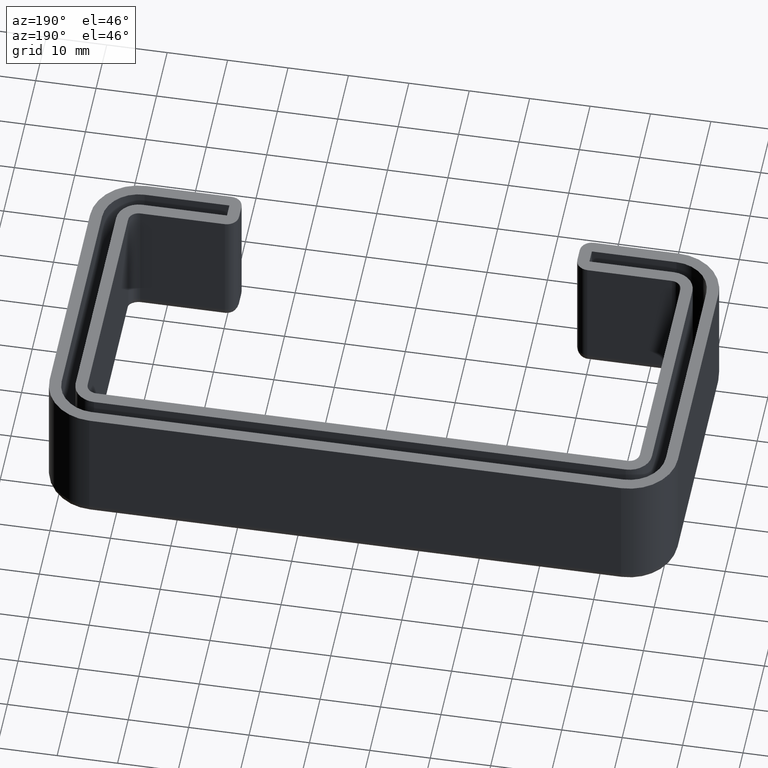
[diagram: clean part render]
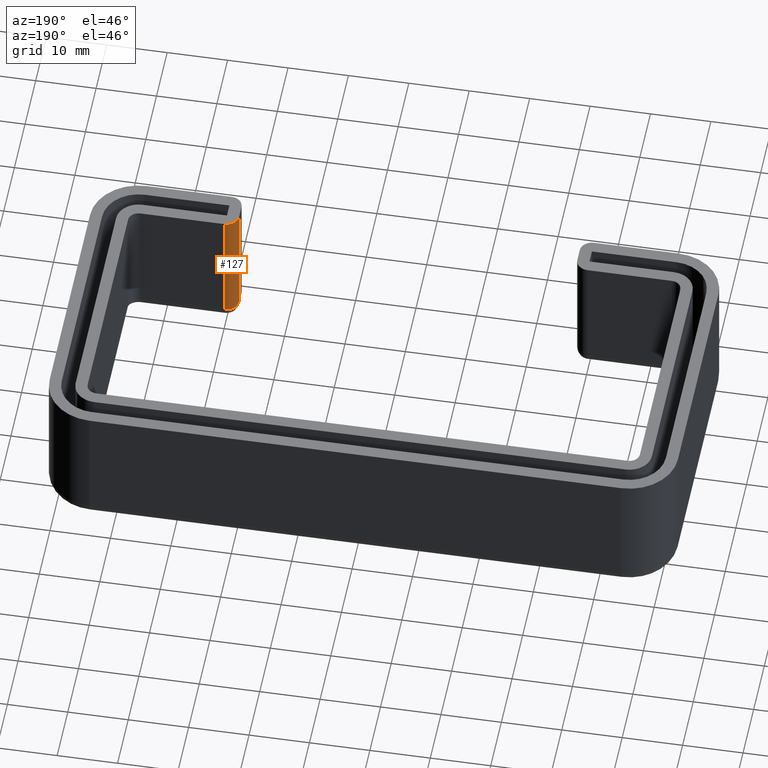
[diagram: same view with one face highlighted and labeled with its STEP entity id]
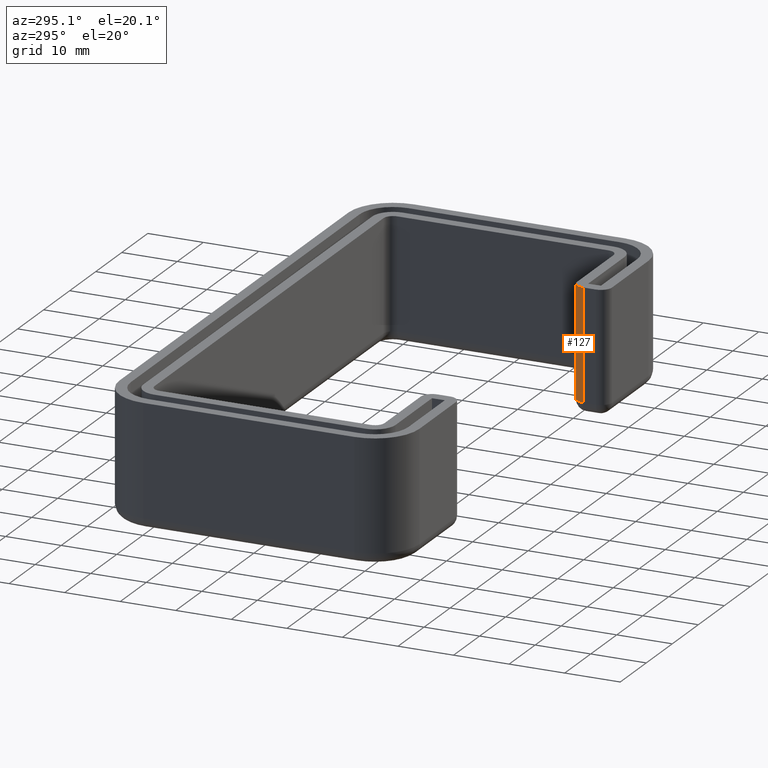
[diagram: same view with one face highlighted and labeled with its STEP entity id]
A machine part, auxiliary view. The second image highlights one B-rep face of the part: STEP entity #127.
A second angle (auxiliary view) of the same face is appended — the face is thin or edge-on in the first view.
In plain terms, the highlighted cylindrical surface (edge-blend (fillet) strip) has radius 2 mm, axis along (0, 0, 1).
Its self-contained STEP definition (entity closure, byte-faithful):
#127 = ADVANCED_FACE( '', ( #252 ), #253, .T. );
#252 = FACE_OUTER_BOUND( '', #395, .T. );
#253 = CYLINDRICAL_SURFACE( '', #396, 2.00000000000000 );
#395 = EDGE_LOOP( '', ( #867, #868, #869, #870 ) );
#396 = AXIS2_PLACEMENT_3D( '', #871, #872, #873 );
#867 = ORIENTED_EDGE( '', *, *, #1118, .F. );
#868 = ORIENTED_EDGE( '', *, *, #1157, .T. );
#869 = ORIENTED_EDGE( '', *, *, #1119, .F. );
#870 = ORIENTED_EDGE( '', *, *, #1009, .F. );
#871 = CARTESIAN_POINT( '', ( 30.0000000000000, -22.6999999999999, -3.46944695195361E-015 ) );
#872 = DIRECTION( '', ( 0.000000000000000, 0.000000000000000, 1.00000000000000 ) );
#873 = DIRECTION( '', ( -1.00000000000000, 0.000000000000000, 0.000000000000000 ) );
#1009 = EDGE_CURVE( '', #1195, #1197, #1198, .F. );
#1118 = EDGE_CURVE( '', #1389, #1195, #1391, .F. );
#1119 = EDGE_CURVE( '', #1197, #1392, #1393, .T. );
#1157 = EDGE_CURVE( '', #1389, #1392, #1441, .F. );
#1195 = VERTEX_POINT( '', #1484 );
#1197 = VERTEX_POINT( '', #1487 );
#1198 = CIRCLE( '', #1488, 2.00000000000000 );
#1389 = VERTEX_POINT( '', #1741 );
#1391 = LINE( '', #1744, #1745 );
#1392 = VERTEX_POINT( '', #1746 );
#1393 = LINE( '', #1747, #1748 );
#1441 = CIRCLE( '', #1829, 2.00000000000000 );
#1484 = CARTESIAN_POINT( '', ( 30.0000000000000, -20.6999999999999, -3.46944695195361E-015 ) );
#1487 = CARTESIAN_POINT( '', ( 28.0000000000000, -22.6999999999999, -3.46944695195361E-015 ) );
#1488 = AXIS2_PLACEMENT_3D( '', #1867, #1868, #1869 );
#1741 = CARTESIAN_POINT( '', ( 30.0000000000000, -20.6999999999999, -20.0000000000000 ) );
#1744 = CARTESIAN_POINT( '', ( 30.0000000000000, -20.6999999999999, -3.46944695195361E-015 ) );
#1745 = VECTOR( '', #2068, 1000.00000000000 );
#1746 = CARTESIAN_POINT( '', ( 28.0000000000000, -22.6999999999999, -20.0000000000000 ) );
#1747 = CARTESIAN_POINT( '', ( 28.0000000000000, -22.6999999999999, -3.46944695195361E-015 ) );
#1748 = VECTOR( '', #2069, 1000.00000000000 );
#1829 = AXIS2_PLACEMENT_3D( '', #2115, #2116, #2117 );
#1867 = CARTESIAN_POINT( '', ( 30.0000000000000, -22.6999999999999, -3.46944695195361E-015 ) );
#1868 = DIRECTION( '', ( 0.000000000000000, 0.000000000000000, -1.00000000000000 ) );
#1869 = DIRECTION( '', ( -1.00000000000000, 0.000000000000000, 0.000000000000000 ) );
#2068 = DIRECTION( '', ( 0.000000000000000, 0.000000000000000, -1.00000000000000 ) );
#2069 = DIRECTION( '', ( 0.000000000000000, 0.000000000000000, -1.00000000000000 ) );
#2115 = CARTESIAN_POINT( '', ( 30.0000000000000, -22.6999999999999, -20.0000000000000 ) );
#2116 = DIRECTION( '', ( 0.000000000000000, 0.000000000000000, -1.00000000000000 ) );
#2117 = DIRECTION( '', ( -1.00000000000000, 0.000000000000000, 0.000000000000000 ) );